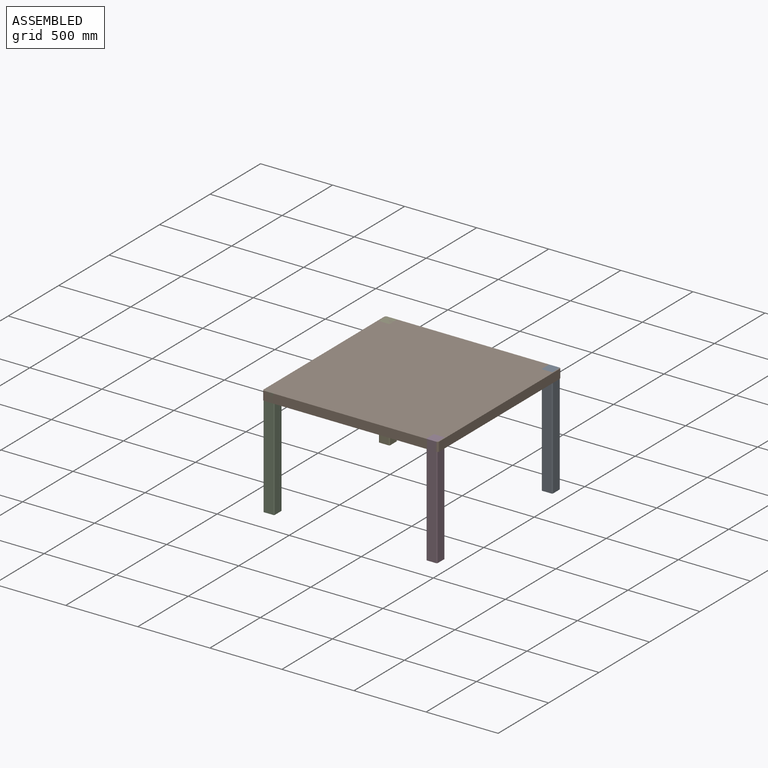
[diagram: assembled view]
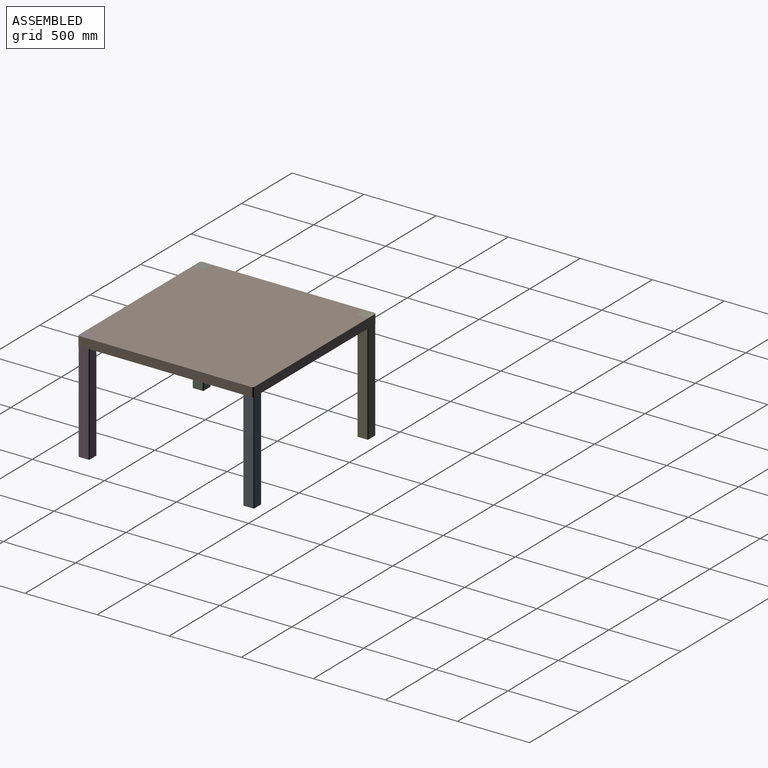
[diagram: assembled view, second angle]
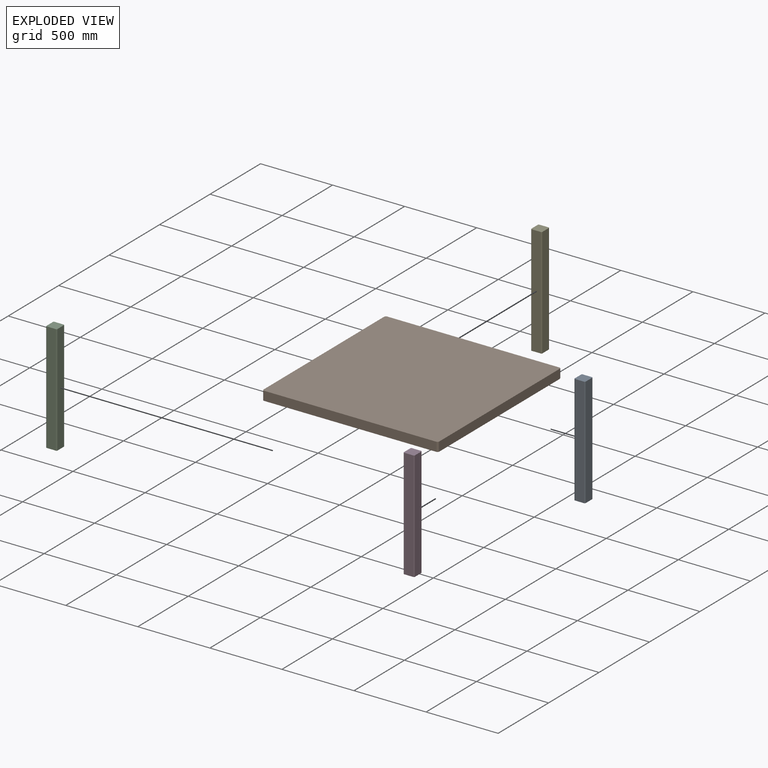
[diagram: exploded view]
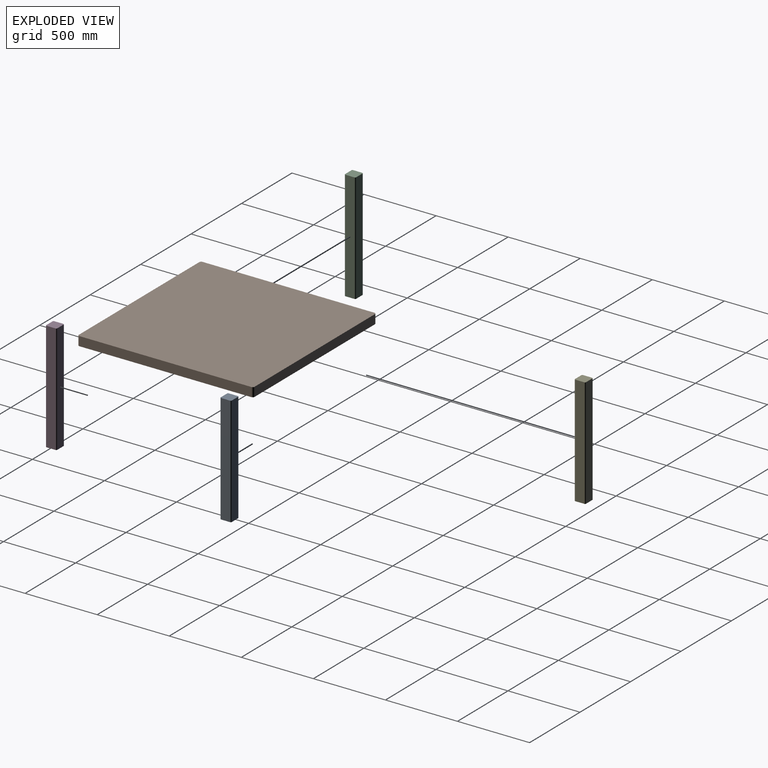
[diagram: exploded view, second angle]
ASSEMBLY  parts=5 mates=4
PART A: 10 faces, bbox 76.2x76.2x762 mm
  f0: plane 762x63.5mm, normal (0,-1,0), area 48387mm2, adj f1,f7,f8,f9
  f1: cylinder r=6.35mm len=762mm, axis (0,0,-1), area 7600.6mm2, adj f0,f2,f8,f9
  f2: plane 762x63.5mm, normal (1,0,0), area 48387mm2, adj f1,f3,f8,f9
  f3: cylinder r=6.35mm len=762mm, axis (0,0,-1), area 7600.6mm2, adj f2,f4,f8,f9
  f4: plane 762x63.5mm, normal (0,1,0), area 48387mm2, adj f3,f5,f8,f9
  f5: cylinder r=6.35mm len=762mm, axis (0,0,-1), area 7600.6mm2, adj f4,f6,f8,f9
  f6: plane 762x63.5mm, normal (-1,0,0), area 48387mm2, adj f5,f7,f8,f9
  f7: cylinder r=6.35mm len=762mm, axis (0,0,-1), area 7600.6mm2, adj f0,f6,f8,f9
  f8: plane 76.2x76.2mm, normal (0,0,1), area 5771.8mm2, adj f0,f1,f2,f3,f4,f5,f6,f7
  f9: plane 76.2x76.2mm, normal (0,0,-1), area 5771.8mm2, adj f0,f1,f2,f3,f4,f5,f6,f7
PART B: 10 faces, bbox 1219.2x1219.2x63.5 mm
  f0: plane 1193.8x63.5mm, normal (0,-1,0), area 75806.3mm2, adj f1,f7,f8,f9
  f1: cylinder r=12.7mm len=63.5mm, axis (0,0,-1), area 1266.8mm2, adj f0,f2,f8,f9
  f2: plane 1193.8x63.5mm, normal (1,0,0), area 75806.3mm2, adj f1,f3,f8,f9
  f3: cylinder r=12.7mm len=63.5mm, axis (0,0,-1), area 1266.8mm2, adj f2,f4,f8,f9
  f4: plane 1193.8x63.5mm, normal (0,1,0), area 75806.3mm2, adj f3,f5,f8,f9
  f5: cylinder r=12.7mm len=63.5mm, axis (0,0,-1), area 1266.8mm2, adj f4,f6,f8,f9
  f6: plane 1193.8x63.5mm, normal (-1,0,0), area 75806.3mm2, adj f5,f7,f8,f9
  f7: cylinder r=12.7mm len=63.5mm, axis (0,0,-1), area 1266.8mm2, adj f0,f6,f8,f9
  f8: plane 1219.2x1219.2mm, normal (0,0,1), area 1486310.2mm2, adj f0,f1,f2,f3,f4,f5,f6,f7
  f9: plane 1219.2x1219.2mm, normal (0,0,-1), area 1486310.2mm2, adj f0,f1,f2,f3,f4,f5,f6,f7
PART C: same geometry as A
PART D: same geometry as A
PART E: same geometry as A
PLACE A t=(603.25,609.6,-762)mm
PLACE B t=(0,0,-63.5)mm
PLACE C t=(-527.05,-533.4,-762)mm
PLACE D t=(603.25,-533.4,-762)mm
PLACE E t=(-527.05,609.6,-762)mm
MATE fastened A.f8 <-> B.f8  axis (0,0,1) through (596.9,609.6,0)mm
MATE fastened C.f8 <-> B.f8  axis (0,0,-1) through (-596.9,-609.6,0)mm
MATE fastened D.f8 <-> B.f8  axis (0,0,-1) through (596.9,-609.6,0)mm
MATE fastened E.f8 <-> B.f8  axis (0,0,-1) through (-596.9,609.6,0)mm
